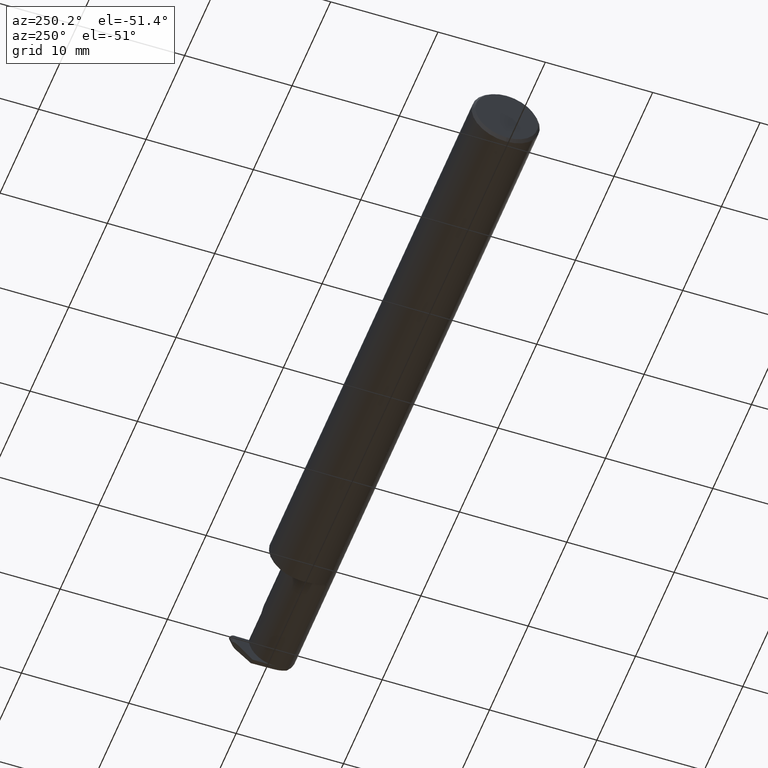
[diagram: clean part render]
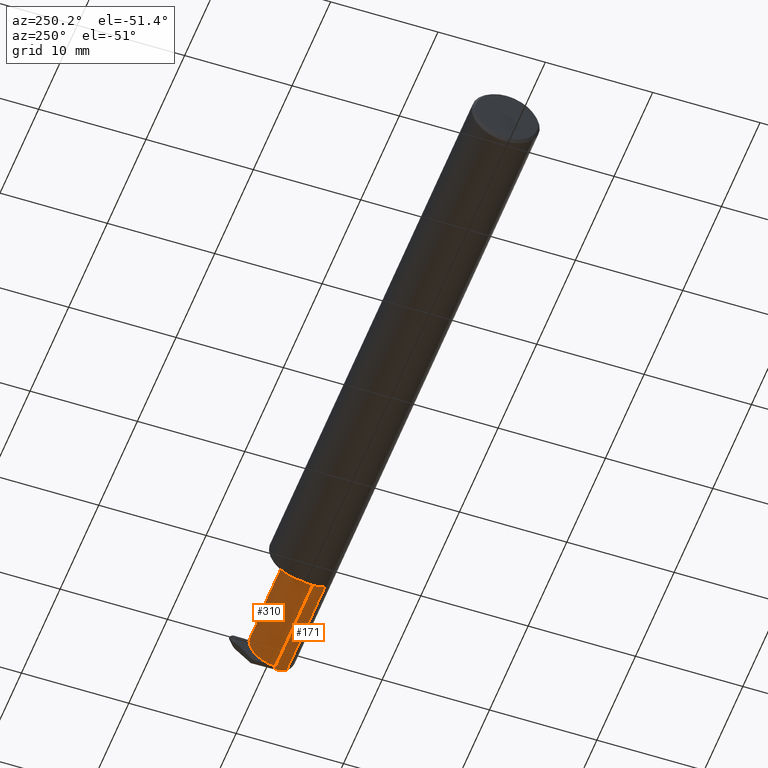
[diagram: same view with one multi-face feature highlighted, each face labeled with its STEP entity id]
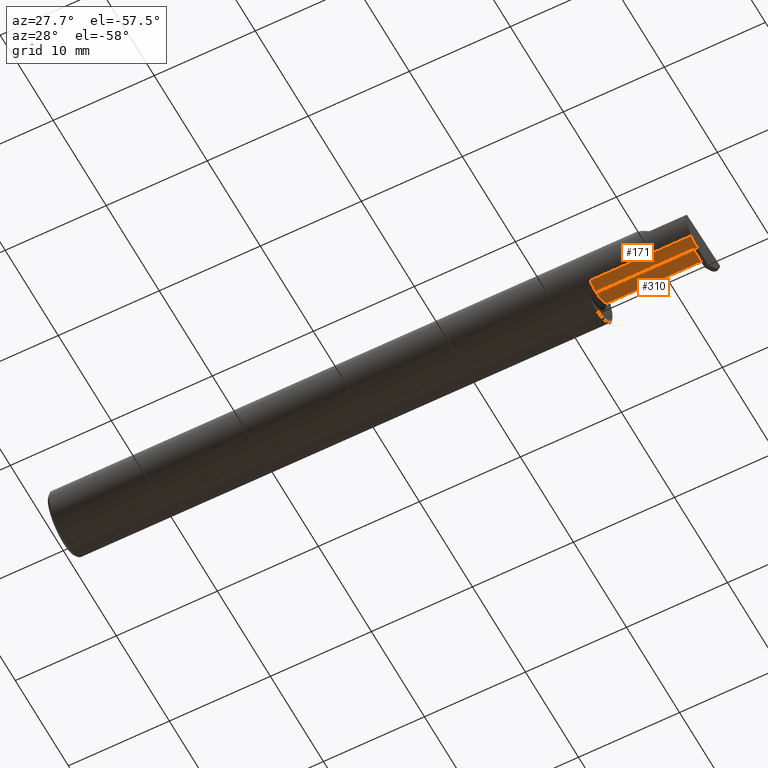
[diagram: same view with one multi-face feature highlighted, each face labeled with its STEP entity id]
A machine part, auxiliary view. The highlighted faces form ONE feature: a constant-radius fillet chain: 2 tangent blend faces with common blend radius 2.4892 mm. The faces share edges in the B-rep.
A second angle (auxiliary view) of the same feature is appended — it is thin or edge-on in the first view.
Their STEP definitions:
[1] entity #310 (Cylinder):
#4 = DIRECTION ( 'NONE',  ( 0.000000000000000000, 0.000000000000000000, 1.000000000000000000 ) ) ;
#20 = EDGE_CURVE ( 'NONE', #172, #434, #565, .T. ) ;
#45 = DIRECTION ( 'NONE',  ( 1.000000000000000000, 0.000000000000000000, 0.000000000000000000 ) ) ;
#46 = VERTEX_POINT ( 'NONE', #710 ) ;
#49 = ORIENTED_EDGE ( 'NONE', *, *, #204, .F. ) ;
#55 = EDGE_CURVE ( 'NONE', #434, #644, #275, .T. ) ;
#60 = CARTESIAN_POINT ( 'NONE',  ( 2.469251112866224673, 0.05399999999999999245, 0.000000000000000000 ) ) ;
#70 = FACE_OUTER_BOUND ( 'NONE', #730, .T. ) ;
#71 = VERTEX_POINT ( 'NONE', #295 ) ;
#78 = AXIS2_PLACEMENT_3D ( 'NONE', #184, #755, #436 ) ;
#81 = EDGE_CURVE ( 'NONE', #725, #46, #90, .T. ) ;
#90 =( BOUNDED_CURVE ( )  B_SPLINE_CURVE ( 3, ( #802, #398, #540, #362 ),
 .UNSPECIFIED., .F., .T. ) 
 B_SPLINE_CURVE_WITH_KNOTS ( ( 4, 4 ),
 ( 3.176499238629679756, 4.677482395344804367 ),
 .UNSPECIFIED. ) 
 CURVE ( )  GEOMETRIC_REPRESENTATION_ITEM ( )  RATIONAL_B_SPLINE_CURVE ( ( 1.000000000000000000, 0.8209024677461134178, 0.8209024677461134178, 1.000000000000000000 ) ) 
 REPRESENTATION_ITEM ( '' )  );
#135 = CYLINDRICAL_SURFACE ( 'NONE', #78, 0.09800000000000005929 ) ;
#141 = ORIENTED_EDGE ( 'NONE', *, *, #382, .F. ) ;
#146 = ORIENTED_EDGE ( 'NONE', *, *, #81, .F. ) ;
#148 = LINE ( 'NONE', #330, #602 ) ;
#149 = VECTOR ( 'NONE', #45, 39.37007874015748143 ) ;
#172 = VERTEX_POINT ( 'NONE', #383 ) ;
#184 = CARTESIAN_POINT ( 'NONE',  ( 2.075000000000000178, -0.04400000000000004602, 0.000000000000000000 ) ) ;
#204 = EDGE_CURVE ( 'NONE', #551, #71, #339, .T. ) ;
#213 = CARTESIAN_POINT ( 'NONE',  ( 2.292592929112562405, 0.05399999999999999245, 0.05740707088743673275 ) ) ;
#217 = ORIENTED_EDGE ( 'NONE', *, *, #476, .F. ) ;
#234 = CARTESIAN_POINT ( 'NONE',  ( 2.350000000000000089, 0.05399999999999999245, 5.204748896376245769E-17 ) ) ;
#275 = LINE ( 'NONE', #359, #149 ) ;
#278 = CARTESIAN_POINT ( 'NONE',  ( 2.251999999999998892, -0.04400000000000004602, 0.09800000000000005929 ) ) ;
#289 = EDGE_CURVE ( 'NONE', #725, #71, #618, .T. ) ;
#294 = CARTESIAN_POINT ( 'NONE',  ( 2.100000000000000089, -0.04400000000000004602, 0.09800000000000005929 ) ) ;
#295 = CARTESIAN_POINT ( 'NONE',  ( 2.100000000000000089, -0.04400000000000003908, -0.09800000000000005929 ) ) ;
#310 = ADVANCED_FACE ( 'NONE', ( #70 ), #135, .T. ) ;
#330 = CARTESIAN_POINT ( 'NONE',  ( 2.075000000000000178, -0.04400000000000004602, 0.09800000000000005929 ) ) ;
#334 = DIRECTION ( 'NONE',  ( -1.000000000000000000, -0.000000000000000000, -0.000000000000000000 ) ) ;
#339 = CIRCLE ( 'NONE', #507, 0.09800000000000005929 ) ;
#359 = CARTESIAN_POINT ( 'NONE',  ( 2.075000000000000178, 0.05399999999999999245, 5.204748896376245769E-17 ) ) ;
#362 = CARTESIAN_POINT ( 'NONE',  ( 2.475680983646864952, 0.05376127692546277259, -0.006836134426924195436 ) ) ;
#371 = CARTESIAN_POINT ( 'NONE',  ( 2.100000000000000089, -0.04400000000000004602, 0.000000000000000000 ) ) ;
#377 = VERTEX_POINT ( 'NONE', #448 ) ;
#382 = EDGE_CURVE ( 'NONE', #46, #377, #510, .T. ) ;
#383 = CARTESIAN_POINT ( 'NONE',  ( 2.251999999999998892, -0.04400000000000004602, 0.09800000000000005929 ) ) ;
#386 = DIRECTION ( 'NONE',  ( -1.000000000000000000, -0.000000000000000000, -0.000000000000000000 ) ) ;
#395 = EDGE_CURVE ( 'NONE', #172, #551, #148, .T. ) ;
#398 = CARTESIAN_POINT ( 'NONE',  ( 2.478970497252991567, 0.01027834358092152844, -0.09800000000000010092 ) ) ;
#406 = B_SPLINE_CURVE_WITH_KNOTS ( 'NONE', 3,
 ( #732, #542, #479, #658 ),
 .UNSPECIFIED., .F., .F.,
 ( 4, 4 ),
 ( 0.000000000000000000, 1.000000000000000000 ),
 .UNSPECIFIED. ) ;
#434 = VERTEX_POINT ( 'NONE', #519 ) ;
#436 = DIRECTION ( 'NONE',  ( 0.000000000000000000, 0.000000000000000000, 1.000000000000000000 ) ) ;
#441 = ORIENTED_EDGE ( 'NONE', *, *, #55, .T. ) ;
#445 = CARTESIAN_POINT ( 'NONE',  ( 2.075000000000000178, -0.04400000000000003908, -0.09800000000000005929 ) ) ;
#448 = CARTESIAN_POINT ( 'NONE',  ( 2.469012389791687578, 0.05376127692546274484, -0.006836134426924765292 ) ) ;
#453 = CARTESIAN_POINT ( 'NONE',  ( 2.075000000000000178, 0.05376127692546276565, -0.006836134426924771364 ) ) ;
#476 = EDGE_CURVE ( 'NONE', #377, #644, #406, .T. ) ;
#479 = CARTESIAN_POINT ( 'NONE',  ( 2.469171538508045938, 0.05392042564182090991, -0.002278711475641585684 ) ) ;
#502 = ORIENTED_EDGE ( 'NONE', *, *, #395, .F. ) ;
#507 = AXIS2_PLACEMENT_3D ( 'NONE', #371, #622, #4 ) ;
#510 = LINE ( 'NONE', #453, #735 ) ;
#519 = CARTESIAN_POINT ( 'NONE',  ( 2.350000000000000089, 0.05399999999999999245, 5.204748896376245769E-17 ) ) ;
#522 = CARTESIAN_POINT ( 'NONE',  ( 2.251999999999999336, 0.01340707088743666418, 0.09800000000000003153 ) ) ;
#540 = CARTESIAN_POINT ( 'NONE',  ( 2.477607449706652254, 0.04997501107658569586, -0.06098225869090267287 ) ) ;
#542 = CARTESIAN_POINT ( 'NONE',  ( 2.469091964149866314, 0.05384085128364182737, -0.004557422951283171368 ) ) ;
#551 = VERTEX_POINT ( 'NONE', #294 ) ;
#565 =( BOUNDED_CURVE ( )  B_SPLINE_CURVE ( 3, ( #278, #522, #213, #234 ),
 .UNSPECIFIED., .F., .T. ) 
 B_SPLINE_CURVE_WITH_KNOTS ( ( 4, 4 ),
 ( 0.000000000000000000, 1.570796326794896336 ),
 .UNSPECIFIED. ) 
 CURVE ( )  GEOMETRIC_REPRESENTATION_ITEM ( )  RATIONAL_B_SPLINE_CURVE ( ( 1.000000000000000000, 0.8047378541243650485, 0.8047378541243650485, 1.000000000000000000 ) ) 
 REPRESENTATION_ITEM ( '' )  );
#579 = ORIENTED_EDGE ( 'NONE', *, *, #289, .T. ) ;
#602 = VECTOR ( 'NONE', #334, 39.37007874015748143 ) ;
#618 = LINE ( 'NONE', #445, #681 ) ;
#622 = DIRECTION ( 'NONE',  ( -1.000000000000000000, -0.000000000000000000, -0.000000000000000000 ) ) ;
#636 = ORIENTED_EDGE ( 'NONE', *, *, #20, .T. ) ;
#644 = VERTEX_POINT ( 'NONE', #60 ) ;
#658 = CARTESIAN_POINT ( 'NONE',  ( 2.469251112866224673, 0.05399999999999999245, 0.000000000000000000 ) ) ;
#681 = VECTOR ( 'NONE', #745, 39.37007874015748143 ) ;
#710 = CARTESIAN_POINT ( 'NONE',  ( 2.475680983646864952, 0.05376127692546277259, -0.006836134426924195436 ) ) ;
#711 = CARTESIAN_POINT ( 'NONE',  ( 2.479037770930199169, -0.04400000000000004602, -0.09800000000000003153 ) ) ;
#725 = VERTEX_POINT ( 'NONE', #711 ) ;
#730 = EDGE_LOOP ( 'NONE', ( #146, #579, #49, #502, #636, #441, #217, #141 ) ) ;
#732 = CARTESIAN_POINT ( 'NONE',  ( 2.469012389791687578, 0.05376127692546274484, -0.006836134426924765292 ) ) ;
#735 = VECTOR ( 'NONE', #386, 39.37007874015748143 ) ;
#745 = DIRECTION ( 'NONE',  ( -1.000000000000000000, -0.000000000000000000, -0.000000000000000000 ) ) ;
#755 = DIRECTION ( 'NONE',  ( -1.000000000000000000, -0.000000000000000000, -0.000000000000000000 ) ) ;
#802 = CARTESIAN_POINT ( 'NONE',  ( 2.479037770930199169, -0.04400000000000004602, -0.09800000000000003153 ) ) ;
[2] entity #171 (Cylinder):
#47 = LINE ( 'NONE', #796, #509 ) ;
#58 = DIRECTION ( 'NONE',  ( 0.000000000000000000, 0.000000000000000000, 1.000000000000000000 ) ) ;
#71 = VERTEX_POINT ( 'NONE', #295 ) ;
#83 = DIRECTION ( 'NONE',  ( -1.000000000000000000, -0.000000000000000000, -0.000000000000000000 ) ) ;
#114 = CARTESIAN_POINT ( 'NONE',  ( 2.493904409643075581, -0.04400000000000004602, -0.09800000000000001765 ) ) ;
#123 = CIRCLE ( 'NONE', #431, 0.09800000000000005929 ) ;
#168 = VERTEX_POINT ( 'NONE', #700 ) ;
#171 = ADVANCED_FACE ( 'NONE', ( #315 ), #612, .T. ) ;
#202 = ORIENTED_EDGE ( 'NONE', *, *, #347, .F. ) ;
#205 = CARTESIAN_POINT ( 'NONE',  ( 2.493502479154699358, -0.09042045454545437344, -0.08630840862739515285 ) ) ;
#233 = DIRECTION ( 'NONE',  ( -1.000000000000000000, -0.000000000000000000, -0.000000000000000000 ) ) ;
#257 = CARTESIAN_POINT ( 'NONE',  ( 2.100000000000000089, -0.04400000000000004602, 0.000000000000000000 ) ) ;
#259 = ORIENTED_EDGE ( 'NONE', *, *, #490, .T. ) ;
#284 = ORIENTED_EDGE ( 'NONE', *, *, #620, .F. ) ;
#289 = EDGE_CURVE ( 'NONE', #725, #71, #618, .T. ) ;
#295 = CARTESIAN_POINT ( 'NONE',  ( 2.100000000000000089, -0.04400000000000003908, -0.09800000000000005929 ) ) ;
#301 = VERTEX_POINT ( 'NONE', #693 ) ;
#315 = FACE_OUTER_BOUND ( 'NONE', #430, .T. ) ;
#347 = EDGE_CURVE ( 'NONE', #301, #725, #467, .T. ) ;
#369 = DIRECTION ( 'NONE',  ( 0.000000000000000000, 0.000000000000000000, 1.000000000000000000 ) ) ;
#379 = CARTESIAN_POINT ( 'NONE',  ( 2.075000000000000178, -0.04400000000000004602, 0.000000000000000000 ) ) ;
#381 = DIRECTION ( 'NONE',  ( -1.000000000000000000, -0.000000000000000000, -0.000000000000000000 ) ) ;
#404 = VERTEX_POINT ( 'NONE', #205 ) ;
#411 = ORIENTED_EDGE ( 'NONE', *, *, #454, .F. ) ;
#430 = EDGE_LOOP ( 'NONE', ( #663, #202, #411, #259, #284 ) ) ;
#431 = AXIS2_PLACEMENT_3D ( 'NONE', #257, #381, #369 ) ;
#445 = CARTESIAN_POINT ( 'NONE',  ( 2.075000000000000178, -0.04400000000000003908, -0.09800000000000005929 ) ) ;
#454 = EDGE_CURVE ( 'NONE', #404, #301, #650, .T. ) ;
#467 = LINE ( 'NONE', #642, #533 ) ;
#470 = CARTESIAN_POINT ( 'NONE',  ( 2.493502479154699358, -0.09042045454545437344, -0.08630840862739515285 ) ) ;
#490 = EDGE_CURVE ( 'NONE', #404, #168, #47, .T. ) ;
#509 = VECTOR ( 'NONE', #233, 39.37007874015748143 ) ;
#533 = VECTOR ( 'NONE', #83, 39.37007874015748143 ) ;
#612 = CYLINDRICAL_SURFACE ( 'NONE', #800, 0.09800000000000005929 ) ;
#618 = LINE ( 'NONE', #445, #681 ) ;
#620 = EDGE_CURVE ( 'NONE', #71, #168, #123, .T. ) ;
#642 = CARTESIAN_POINT ( 'NONE',  ( 2.672413070268786939, -0.04400000000000004602, -0.09800000000000001765 ) ) ;
#650 =( BOUNDED_CURVE ( )  B_SPLINE_CURVE ( 3, ( #470, #728, #665, #114 ),
 .UNSPECIFIED., .F., .F. ) 
 B_SPLINE_CURVE_WITH_KNOTS ( ( 4, 4 ),
 ( 6.253187659403681486, 6.746650124384971470 ),
 .UNSPECIFIED. ) 
 CURVE ( )  GEOMETRIC_REPRESENTATION_ITEM ( )  RATIONAL_B_SPLINE_CURVE ( ( 1.000000000000000000, 0.9798106333074688701, 0.9798106333074688701, 1.000000000000000000 ) ) 
 REPRESENTATION_ITEM ( '' )  );
#663 = ORIENTED_EDGE ( 'NONE', *, *, #289, .F. ) ;
#665 = CARTESIAN_POINT ( 'NONE',  ( 2.493620144954195261, -0.06028551311893202286, -0.09800000000000008704 ) ) ;
#681 = VECTOR ( 'NONE', #745, 39.37007874015748143 ) ;
#693 = CARTESIAN_POINT ( 'NONE',  ( 2.493904409643075581, -0.04400000000000004602, -0.09800000000000001765 ) ) ;
#700 = CARTESIAN_POINT ( 'NONE',  ( 2.100000000000000089, -0.09042045454545434569, -0.08630840862739518060 ) ) ;
#711 = CARTESIAN_POINT ( 'NONE',  ( 2.479037770930199169, -0.04400000000000004602, -0.09800000000000003153 ) ) ;
#725 = VERTEX_POINT ( 'NONE', #711 ) ;
#728 = CARTESIAN_POINT ( 'NONE',  ( 2.493483407481765113, -0.07607783494366275601, -0.09402249966297455963 ) ) ;
#745 = DIRECTION ( 'NONE',  ( -1.000000000000000000, -0.000000000000000000, -0.000000000000000000 ) ) ;
#761 = DIRECTION ( 'NONE',  ( -1.000000000000000000, -0.000000000000000000, -0.000000000000000000 ) ) ;
#796 = CARTESIAN_POINT ( 'NONE',  ( 2.287237909999999985, -0.09042045454545437344, -0.08630840862739515285 ) ) ;
#800 = AXIS2_PLACEMENT_3D ( 'NONE', #379, #761, #58 ) ;